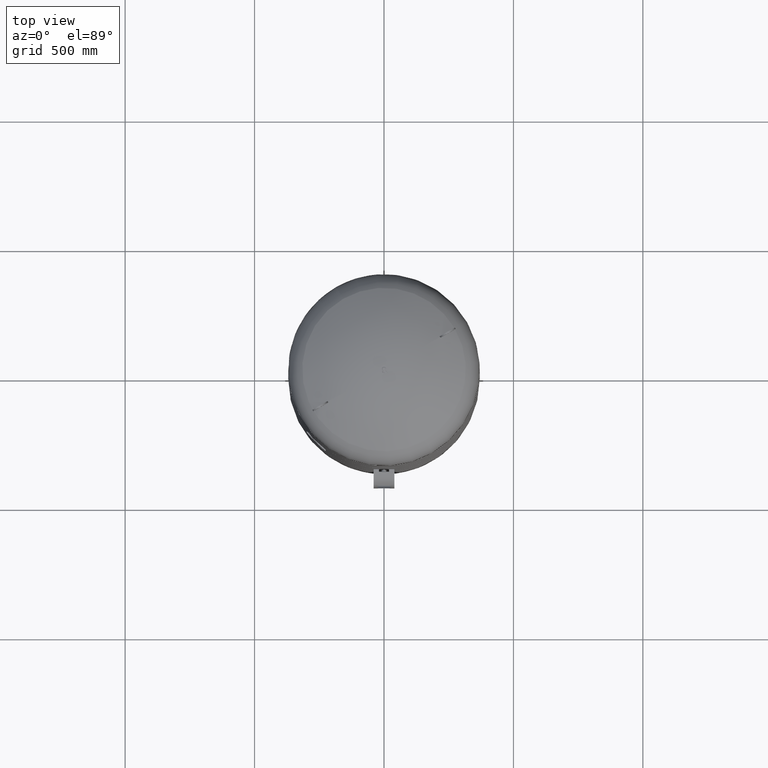
[diagram: clean part render]
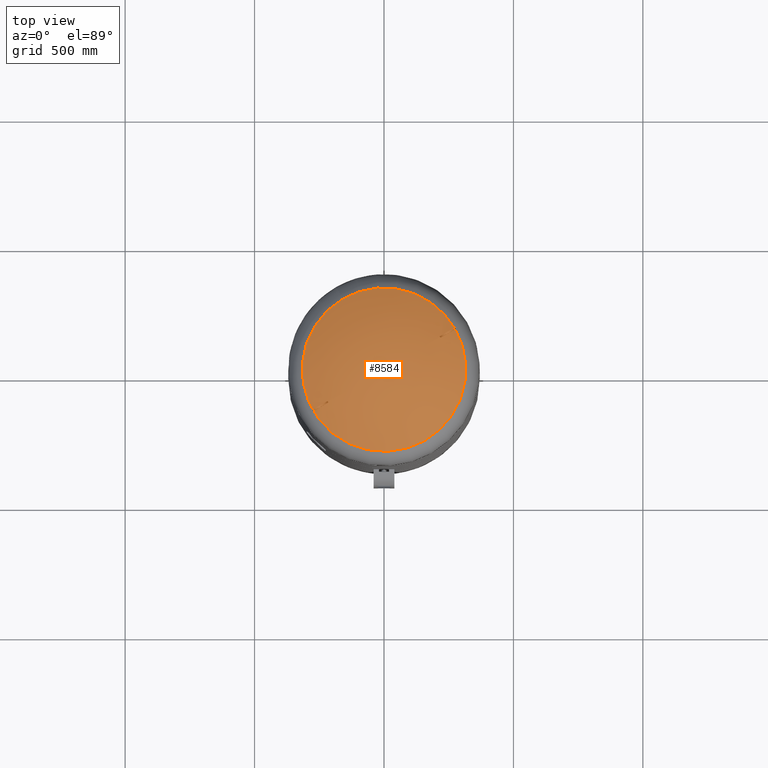
[diagram: same view with one face highlighted and labeled with its STEP entity id]
A machine part, top view. The second image highlights one B-rep face of the part: STEP entity #8584.
In plain terms, the highlighted spherical surface has radius 594 mm.
Its self-contained STEP definition (entity closure, byte-faithful):
#7953=CARTESIAN_POINT('',(157.965517241379270,-273.604301705966460,2482.014494274920300));
#7954=VERTEX_POINT('',#7953);
#7970=CARTESIAN_POINT('',(-157.965517241379250,273.604301705966410,2482.014494274920300));
#7971=VERTEX_POINT('',#7970);
#7979=CARTESIAN_POINT('',(273.604301705966460,157.965517241379250,2482.014494274920300));
#7980=VERTEX_POINT('',#7979);
#7981=CARTESIAN_POINT('',(-1.292814E-015,-2.004580E-014,2482.014494274920300));
#7982=DIRECTION('',(-1.060575E-016,-6.123234E-017,-1.0));
#7983=DIRECTION('',(0.866025403784439,0.500000000000000,-1.224647E-016));
#7984=AXIS2_PLACEMENT_3D('',#7981,#7982,#7983);
#7985=CIRCLE('',#7984,315.931034482758610);
#7986=EDGE_CURVE('',#7971,#7980,#7985,.T.);
#7988=CARTESIAN_POINT('',(-1.292814E-015,-2.004580E-014,2482.014494274920300));
#7989=DIRECTION('',(-1.060575E-016,-6.123234E-017,-1.0));
#7990=DIRECTION('',(0.866025403784439,0.500000000000000,-1.224647E-016));
#7991=AXIS2_PLACEMENT_3D('',#7988,#7989,#7990);
#7992=CIRCLE('',#7991,315.931034482758610);
#7993=EDGE_CURVE('',#7980,#7954,#7992,.T.);
#8129=CARTESIAN_POINT('',(215.032738994050080,127.613311357928240,2517.805868495306200));
#8130=VERTEX_POINT('',#8129);
#8131=CARTESIAN_POINT('',(264.376557238610250,156.101978104269390,2487.500942393024600));
#8132=VERTEX_POINT('',#8131);
#8133=CARTESIAN_POINT('',(-1.499999999995883,2.598076211345996,1979.0));
#8134=DIRECTION('',(-0.500000000000006,0.866025403784435,0.0));
#8135=DIRECTION('',(0.0,0.0,1.0));
#8136=AXIS2_PLACEMENT_3D('',#8133,#8134,#8135);
#8137=CIRCLE('',#8136,593.992424194113820);
#8138=EDGE_CURVE('',#8130,#8132,#8137,.T.);
#8181=CARTESIAN_POINT('',(218.032738994050020,122.417158935221560,2517.805868495306200));
#8182=VERTEX_POINT('',#8181);
#8183=CARTESIAN_POINT('',(81.041876268855148,46.789549079456478,1953.075117590819000));
#8184=DIRECTION('',(-0.834590199910595,-0.481850876581413,0.266981143436978));
#8185=DIRECTION('',(-0.231212452547840,-0.133490571718489,-0.963701753162815));
#8186=AXIS2_PLACEMENT_3D('',#8183,#8184,#8185);
#8187=CIRCLE('',#8186,586.009260046148940);
#8188=EDGE_CURVE('',#8182,#8130,#8187,.T.);
#8252=CARTESIAN_POINT('',(267.376557238610190,150.905825681562790,2487.500942393024600));
#8253=VERTEX_POINT('',#8252);
#8254=CARTESIAN_POINT('',(133.621058863222740,77.146154304085570,1936.255305554289400));
#8255=DIRECTION('',(0.834590199910595,0.481850876581413,-0.266981143436978));
#8256=DIRECTION('',(0.231212452547840,0.133490571718489,0.963701753162815));
#8257=AXIS2_PLACEMENT_3D('',#8254,#8255,#8256);
#8258=CIRCLE('',#8257,572.016411129177530);
#8259=EDGE_CURVE('',#8132,#8253,#8258,.T.);
#8323=CARTESIAN_POINT('',(1.500000000004162,-2.598076211360627,1979.0));
#8324=DIRECTION('',(0.500000000000006,-0.866025403784435,0.0));
#8325=DIRECTION('',(0.0,0.0,-1.0));
#8326=AXIS2_PLACEMENT_3D('',#8323,#8324,#8325);
#8327=CIRCLE('',#8326,593.992424194113710);
#8328=EDGE_CURVE('',#8253,#8182,#8327,.T.);
#8345=CARTESIAN_POINT('',(-215.032738994045760,-127.613311357935440,2517.805868495306200));
#8346=VERTEX_POINT('',#8345);
#8347=CARTESIAN_POINT('',(-264.376557238605870,-156.101978104276610,2487.500942393024600));
#8348=VERTEX_POINT('',#8347);
#8349=CARTESIAN_POINT('',(1.499999999999974,-2.598076211353372,1979.0));
#8350=DIRECTION('',(0.500000000000006,-0.866025403784435,0.0));
#8351=DIRECTION('',(0.0,0.0,-1.0));
#8352=AXIS2_PLACEMENT_3D('',#8349,#8350,#8351);
#8353=CIRCLE('',#8352,593.992424194113820);
#8354=EDGE_CURVE('',#8346,#8348,#8353,.T.);
#8397=CARTESIAN_POINT('',(-218.032738994045790,-122.417158935228780,2517.805868495306200));
#8398=VERTEX_POINT('',#8397);
#8399=CARTESIAN_POINT('',(-81.041876268855106,-46.789549079456712,1953.075117590819000));
#8400=DIRECTION('',(0.834590199910595,0.481850876581413,0.266981143436977));
#8401=DIRECTION('',(-0.231212452547839,-0.133490571718489,0.963701753162815));
#8402=AXIS2_PLACEMENT_3D('',#8399,#8400,#8401);
#8403=CIRCLE('',#8402,586.009260046148940);
#8404=EDGE_CURVE('',#8398,#8346,#8403,.T.);
#8468=CARTESIAN_POINT('',(-267.376557238605810,-150.905825681569980,2487.500942393024600));
#8469=VERTEX_POINT('',#8468);
#8470=CARTESIAN_POINT('',(-133.621058863222710,-77.146154304085812,1936.255305554289400));
#8471=DIRECTION('',(-0.834590199910595,-0.481850876581413,-0.266981143436977));
#8472=DIRECTION('',(0.231212452547839,0.133490571718489,-0.963701753162815));
#8473=AXIS2_PLACEMENT_3D('',#8470,#8471,#8472);
#8474=CIRCLE('',#8473,572.016411129177530);
#8475=EDGE_CURVE('',#8348,#8469,#8474,.T.);
#8539=CARTESIAN_POINT('',(-1.500000000000086,2.598076211353275,1979.0));
#8540=DIRECTION('',(-0.500000000000006,0.866025403784435,0.0));
#8541=DIRECTION('',(0.0,0.0,1.0));
#8542=AXIS2_PLACEMENT_3D('',#8539,#8540,#8541);
#8543=CIRCLE('',#8542,593.992424194113820);
#8544=EDGE_CURVE('',#8469,#8398,#8543,.T.);
#8556=CARTESIAN_POINT('',(-8.440154E-015,-1.308693E-013,1979.0));
#8557=DIRECTION('',(0.500000000000000,-0.866025403784439,1.836970E-016));
#8558=DIRECTION('',(-0.866025403784439,-0.500000000000000,1.224647E-016));
#8559=AXIS2_PLACEMENT_3D('',#8556,#8557,#8558);
#8560=SPHERICAL_SURFACE('',#8559,594.0);
#8561=ORIENTED_EDGE('',*,*,#8188,.T.);
#8562=ORIENTED_EDGE('',*,*,#8138,.T.);
#8563=ORIENTED_EDGE('',*,*,#8259,.T.);
#8564=ORIENTED_EDGE('',*,*,#8328,.T.);
#8565=EDGE_LOOP('',(#8561,#8562,#8563,#8564));
#8566=FACE_OUTER_BOUND('',#8565,.T.);
#8567=ORIENTED_EDGE('',*,*,#8404,.T.);
#8568=ORIENTED_EDGE('',*,*,#8354,.T.);
#8569=ORIENTED_EDGE('',*,*,#8475,.T.);
#8570=ORIENTED_EDGE('',*,*,#8544,.T.);
#8571=EDGE_LOOP('',(#8567,#8568,#8569,#8570));
#8572=FACE_BOUND('',#8571,.T.);
#8573=ORIENTED_EDGE('',*,*,#7993,.F.);
#8574=ORIENTED_EDGE('',*,*,#7986,.F.);
#8575=CARTESIAN_POINT('',(-1.292814E-015,-2.004580E-014,2482.014494274920300));
#8576=DIRECTION('',(-1.060575E-016,-6.123234E-017,-1.0));
#8577=DIRECTION('',(0.866025403784439,0.500000000000000,-1.224647E-016));
#8578=AXIS2_PLACEMENT_3D('',#8575,#8576,#8577);
#8579=CIRCLE('',#8578,315.931034482758610);
#8580=EDGE_CURVE('',#7954,#7971,#8579,.T.);
#8581=ORIENTED_EDGE('',*,*,#8580,.F.);
#8582=EDGE_LOOP('',(#8573,#8574,#8581));
#8583=FACE_BOUND('',#8582,.T.);
#8584=ADVANCED_FACE('',(#8566,#8572,#8583),#8560,.T.);